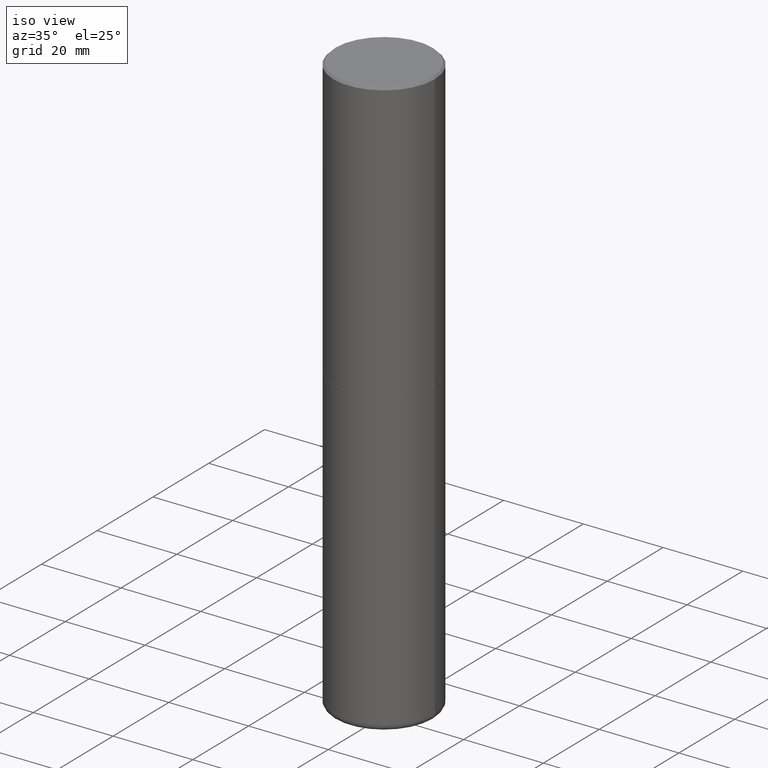
[diagram: clean part render]
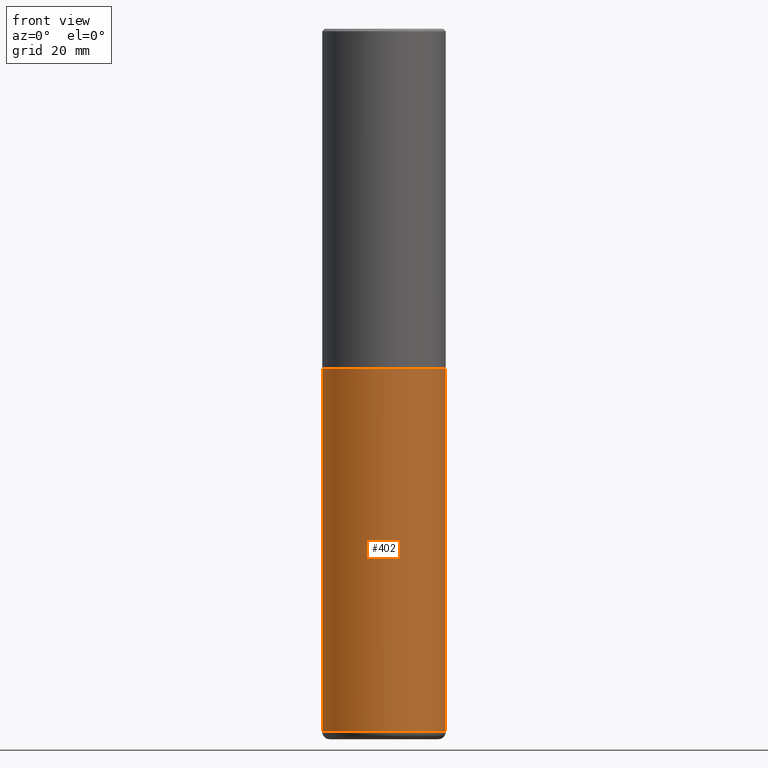
[diagram: tour spotlight — one face highlighted and labeled with its STEP entity id]
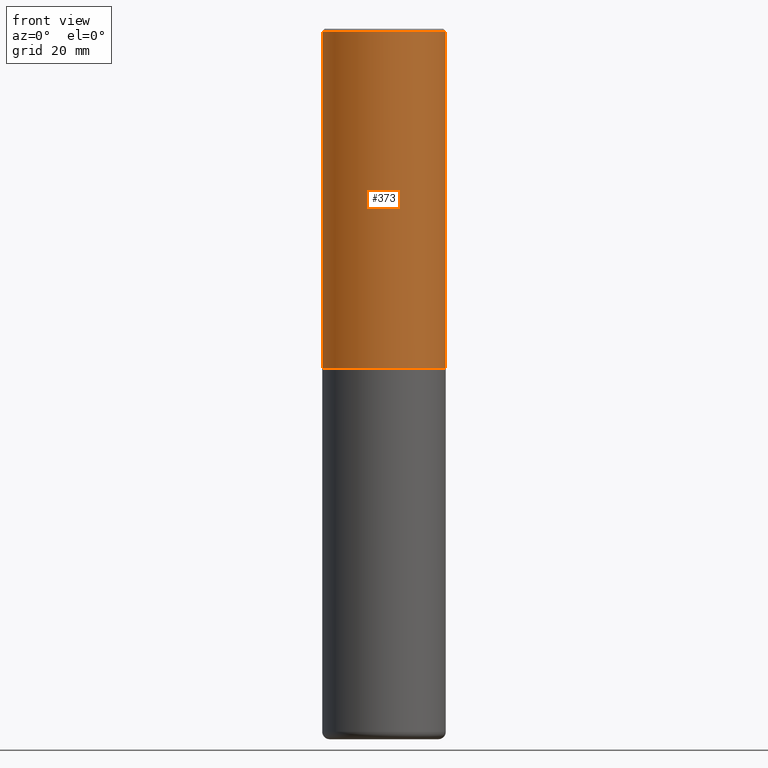
[diagram: tour spotlight — one face highlighted and labeled with its STEP entity id]
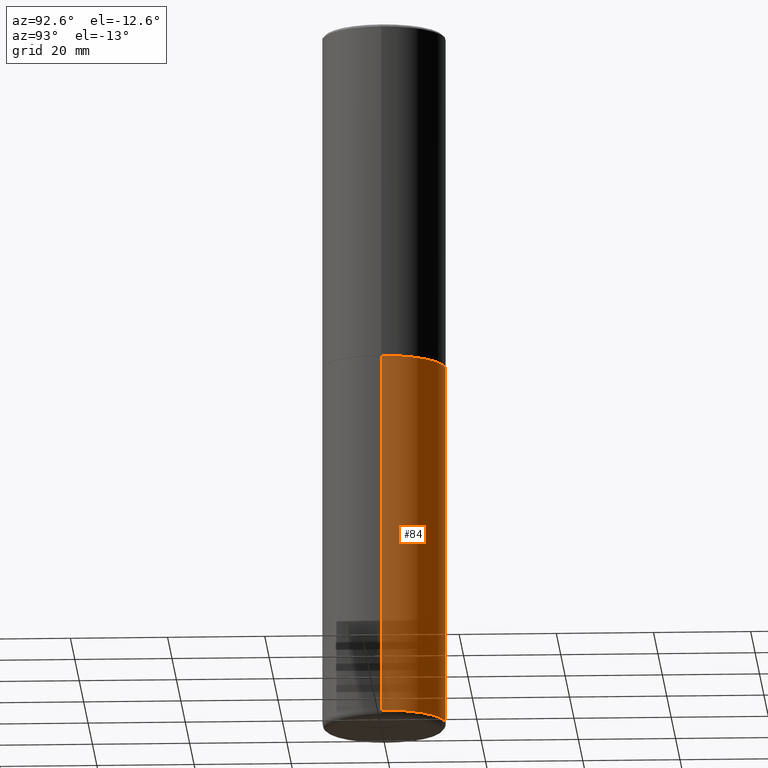
[diagram: tour spotlight — one face highlighted and labeled with its STEP entity id]
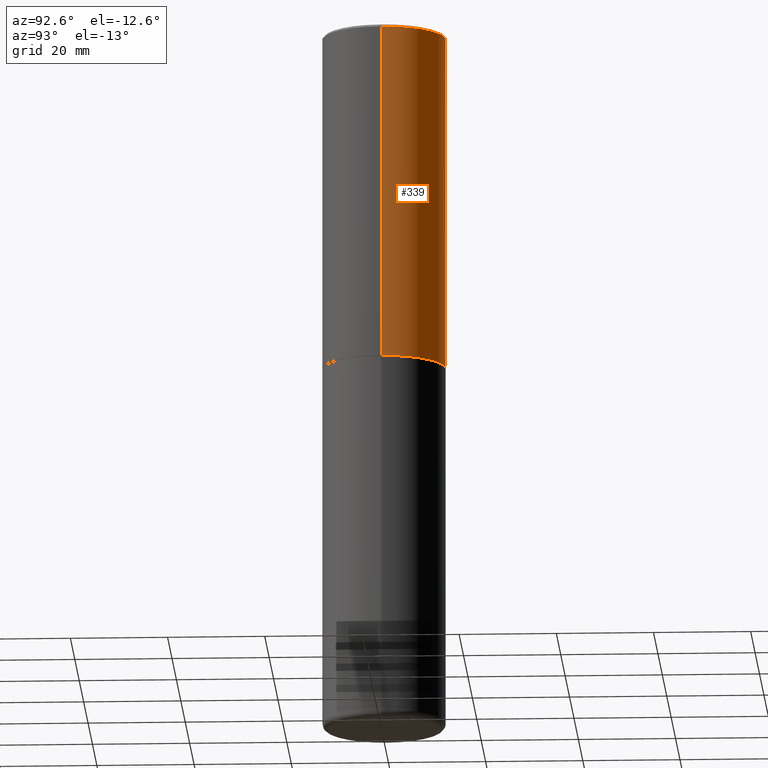
[diagram: tour spotlight — one face highlighted and labeled with its STEP entity id]
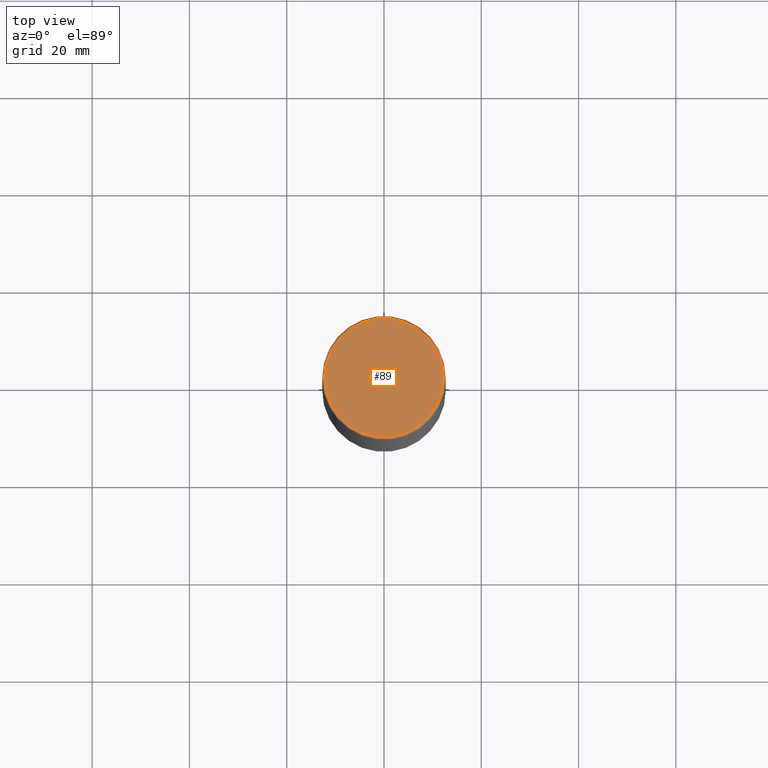
[diagram: tour spotlight — one face highlighted and labeled with its STEP entity id]
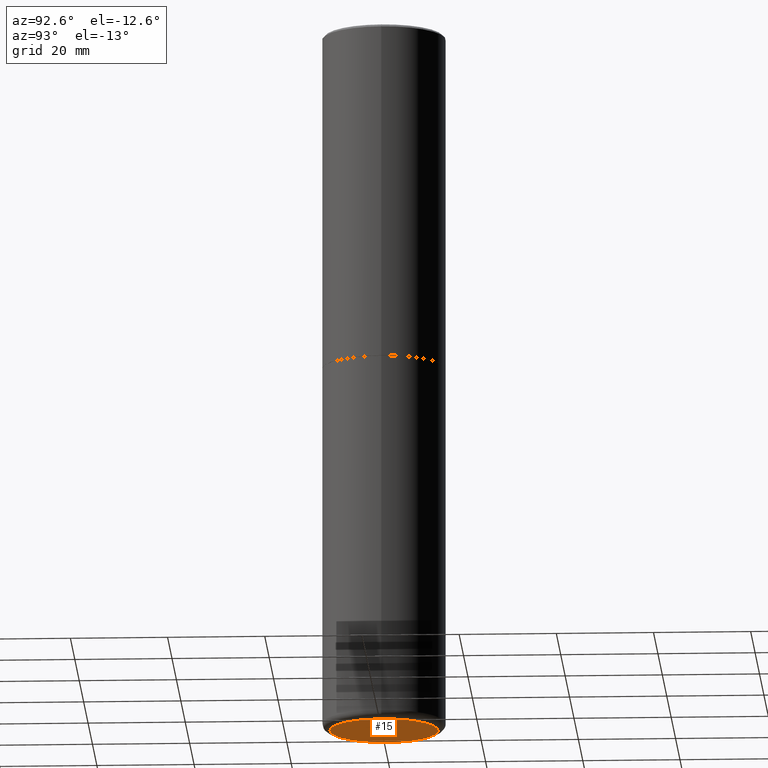
[diagram: tour spotlight — one face highlighted and labeled with its STEP entity id]
A machine part: a face-by-face anatomy tour. The part has 14 B-rep faces; the first image is the clean iso view, then the 6 largest visible faces are spotlighted one at a time (largest first), each with its STEP entity span.

Face 1 — front view, entity #402. In plain terms, the highlighted cylindrical surface (partial cylindrical patch) has radius 12.7 mm, axis along (-0, 0, 1).
Definition (entity closure, byte-faithful):
#13 = FACE_OUTER_BOUND ( 'NONE', #136, .T. ) ;
#22 = EDGE_CURVE ( 'NONE', #87, #220, #389, .T. ) ;
#29 = LINE ( 'NONE', #154, #212 ) ;
#38 = VECTOR ( 'NONE', #187, 39.37007874015748143 ) ;
#39 = ORIENTED_EDGE ( 'NONE', *, *, #271, .F. ) ;
#72 = AXIS2_PLACEMENT_3D ( 'NONE', #120, #149, #245 ) ;
#76 = CYLINDRICAL_SURFACE ( 'NONE', #319, 0.5000000000000000000 ) ;
#87 = VERTEX_POINT ( 'NONE', #217 ) ;
#95 = DIRECTION ( 'NONE',  ( 1.000000000000000000, -6.982962677686266711E-15, 0.000000000000000000 ) ) ;
#106 = CARTESIAN_POINT ( 'NONE',  ( 0.000000000000000000, 0.000000000000000000, 0.000000000000000000 ) ) ;
#108 = DIRECTION ( 'NONE',  ( 1.000000000000000000, -6.982962677686266711E-15, 4.876176775795935793E-29 ) ) ;
#109 = VERTEX_POINT ( 'NONE', #382 ) ;
#120 = CARTESIAN_POINT ( 'NONE',  ( 1.391471750719342616E-28, -1.986652881801749632E-14, -5.689999999999999503 ) ) ;
#129 = DIRECTION ( 'NONE',  ( -2.445468806185136597E-29, 3.491481338843145583E-15, 1.000000000000000000 ) ) ;
#131 = EDGE_CURVE ( 'NONE', #87, #198, #256, .T. ) ;
#136 = EDGE_LOOP ( 'NONE', ( #334, #234, #332, #39 ) ) ;
#149 = DIRECTION ( 'NONE',  ( -2.445468806185136597E-29, 3.491481338843145583E-15, 1.000000000000000000 ) ) ;
#154 = CARTESIAN_POINT ( 'NONE',  ( 0.5000000000000000000, -3.491481338843133355E-15, 2.438088387897967896E-29 ) ) ;
#187 = DIRECTION ( 'NONE',  ( -2.445468806185136877E-29, 3.491481338843145188E-15, 1.000000000000000000 ) ) ;
#198 = VERTEX_POINT ( 'NONE', #248 ) ;
#212 = VECTOR ( 'NONE', #411, 39.37007874015748143 ) ;
#217 = CARTESIAN_POINT ( 'NONE',  ( -0.5000000000000002220, -1.631381513921699223E-14, -5.689999999999999503 ) ) ;
#220 = VERTEX_POINT ( 'NONE', #313 ) ;
#225 = EDGE_CURVE ( 'NONE', #220, #109, #29, .T. ) ;
#234 = ORIENTED_EDGE ( 'NONE', *, *, #22, .T. ) ;
#245 = DIRECTION ( 'NONE',  ( 1.000000000000000000, -6.982962677686263555E-15, 0.000000000000000000 ) ) ;
#248 = CARTESIAN_POINT ( 'NONE',  ( -0.5000000000000000000, -1.118133757111757137E-14, -2.749999999999999556 ) ) ;
#252 = CARTESIAN_POINT ( 'NONE',  ( 6.725039217009123399E-29, -9.601573681818648281E-15, -2.749999999999999556 ) ) ;
#255 = CIRCLE ( 'NONE', #315, 0.5000000000000000000 ) ;
#256 = LINE ( 'NONE', #416, #38 ) ;
#271 = EDGE_CURVE ( 'NONE', #198, #109, #255, .T. ) ;
#313 = CARTESIAN_POINT ( 'NONE',  ( 0.5000000000000002220, -2.335801015686062967E-14, -5.689999999999999503 ) ) ;
#315 = AXIS2_PLACEMENT_3D ( 'NONE', #252, #379, #95 ) ;
#319 = AXIS2_PLACEMENT_3D ( 'NONE', #106, #129, #108 ) ;
#332 = ORIENTED_EDGE ( 'NONE', *, *, #225, .T. ) ;
#334 = ORIENTED_EDGE ( 'NONE', *, *, #131, .F. ) ;
#379 = DIRECTION ( 'NONE',  ( -2.445468806185136597E-29, 3.491481338843145583E-15, 1.000000000000000000 ) ) ;
#382 = CARTESIAN_POINT ( 'NONE',  ( 0.5000000000000000000, -1.309305502066178164E-14, -2.749999999999999556 ) ) ;
#389 = CIRCLE ( 'NONE', #72, 0.4999999999999999445 ) ;
#402 = ADVANCED_FACE ( 'NONE', ( #13 ), #76, .T. ) ;
#411 = DIRECTION ( 'NONE',  ( -2.445468806185136877E-29, 3.491481338843145188E-15, 1.000000000000000000 ) ) ;
#416 = CARTESIAN_POINT ( 'NONE',  ( -0.5000000000000000000, 3.552713678800500929E-15, -2.459467545127452891E-29 ) ) ;

Face 2 — front view, entity #373. In plain terms, the highlighted cylindrical surface (partial cylindrical patch) has radius 12.7 mm, axis along (-0, 0, 1).
Definition (entity closure, byte-faithful):
#7 = ORIENTED_EDGE ( 'NONE', *, *, #52, .T. ) ;
#24 = CARTESIAN_POINT ( 'NONE',  ( 0.5000000000000003331, -1.308956353932294179E-14, -2.748999999999999666 ) ) ;
#25 = ORIENTED_EDGE ( 'NONE', *, *, #375, .F. ) ;
#32 = CIRCLE ( 'NONE', #381, 0.5000000000000000000 ) ;
#35 = EDGE_CURVE ( 'NONE', #130, #263, #370, .T. ) ;
#41 = DIRECTION ( 'NONE',  ( -2.445468806185136597E-29, 3.491481338843145583E-15, 1.000000000000000000 ) ) ;
#52 = EDGE_CURVE ( 'NONE', #130, #86, #400, .T. ) ;
#65 = AXIS2_PLACEMENT_3D ( 'NONE', #247, #269, #215 ) ;
#71 = EDGE_LOOP ( 'NONE', ( #102, #7, #258, #25 ) ) ;
#83 = VERTEX_POINT ( 'NONE', #307 ) ;
#86 = VERTEX_POINT ( 'NONE', #24 ) ;
#102 = ORIENTED_EDGE ( 'NONE', *, *, #35, .F. ) ;
#130 = VERTEX_POINT ( 'NONE', #316 ) ;
#155 = CARTESIAN_POINT ( 'NONE',  ( -0.5000000000000000000, 3.421651712066270057E-15, -0.02000000000000010797 ) ) ;
#166 = DIRECTION ( 'NONE',  ( 1.000000000000000000, -6.982962677686266711E-15, 0.000000000000000000 ) ) ;
#172 = CARTESIAN_POINT ( 'NONE',  ( 0.000000000000000000, 0.000000000000000000, 0.000000000000000000 ) ) ;
#182 = DIRECTION ( 'NONE',  ( -2.445468806185136877E-29, 3.491481338843145188E-15, 1.000000000000000000 ) ) ;
#203 = DIRECTION ( 'NONE',  ( -2.445468806185136877E-29, 3.491481338843145188E-15, 1.000000000000000000 ) ) ;
#215 = DIRECTION ( 'NONE',  ( 1.000000000000000000, -6.982962677686265922E-15, 0.000000000000000000 ) ) ;
#228 = DIRECTION ( 'NONE',  ( -2.445468806185136597E-29, 3.491481338843145583E-15, 1.000000000000000000 ) ) ;
#231 = FACE_OUTER_BOUND ( 'NONE', #71, .T. ) ;
#242 = CARTESIAN_POINT ( 'NONE',  ( -0.5000000000000001110, 3.552713678800501718E-15, -2.459467545127453732E-29 ) ) ;
#247 = CARTESIAN_POINT ( 'NONE',  ( 6.722593748202938917E-29, -9.598082200479805274E-15, -2.748999999999999666 ) ) ;
#258 = ORIENTED_EDGE ( 'NONE', *, *, #278, .T. ) ;
#262 = CYLINDRICAL_SURFACE ( 'NONE', #353, 0.5000000000000001110 ) ;
#263 = VERTEX_POINT ( 'NONE', #155 ) ;
#266 = CARTESIAN_POINT ( 'NONE',  ( 0.5000000000000001110, -3.491481338843134539E-15, 2.438088387897968457E-29 ) ) ;
#269 = DIRECTION ( 'NONE',  ( -2.445468806185136597E-29, 3.491481338843145583E-15, 1.000000000000000000 ) ) ;
#278 = EDGE_CURVE ( 'NONE', #86, #83, #356, .T. ) ;
#297 = VECTOR ( 'NONE', #203, 39.37007874015748143 ) ;
#300 = CARTESIAN_POINT ( 'NONE',  ( 4.890937612370299433E-31, -6.982962677686328587E-17, -0.02000000000000010797 ) ) ;
#307 = CARTESIAN_POINT ( 'NONE',  ( 0.5000000000000000000, -3.500078625662629079E-15, -0.02000000000000010797 ) ) ;
#310 = VECTOR ( 'NONE', #182, 39.37007874015748143 ) ;
#316 = CARTESIAN_POINT ( 'NONE',  ( -0.5000000000000003331, -1.281242234827828821E-15, -2.748999999999999666 ) ) ;
#353 = AXIS2_PLACEMENT_3D ( 'NONE', #172, #41, #383 ) ;
#356 = LINE ( 'NONE', #266, #297 ) ;
#370 = LINE ( 'NONE', #242, #310 ) ;
#373 = ADVANCED_FACE ( 'NONE', ( #231 ), #262, .T. ) ;
#375 = EDGE_CURVE ( 'NONE', #263, #83, #32, .T. ) ;
#381 = AXIS2_PLACEMENT_3D ( 'NONE', #300, #228, #166 ) ;
#383 = DIRECTION ( 'NONE',  ( 1.000000000000000000, -6.982962677686267499E-15, 4.876176775795935793E-29 ) ) ;
#400 = CIRCLE ( 'NONE', #65, 0.5000000000000003331 ) ;

Face 3 — auxiliary view, entity #84. In plain terms, the highlighted cylindrical surface (partial cylindrical patch) has radius 12.7 mm, axis along (-0, 0, 1).
Definition (entity closure, byte-faithful):
#26 = CIRCLE ( 'NONE', #287, 0.5000000000000000000 ) ;
#29 = LINE ( 'NONE', #154, #212 ) ;
#38 = VECTOR ( 'NONE', #187, 39.37007874015748143 ) ;
#46 = DIRECTION ( 'NONE',  ( -2.445468806185136597E-29, 3.491481338843145583E-15, 1.000000000000000000 ) ) ;
#53 = CIRCLE ( 'NONE', #178, 0.4999999999999999445 ) ;
#58 = ORIENTED_EDGE ( 'NONE', *, *, #363, .F. ) ;
#67 = CARTESIAN_POINT ( 'NONE',  ( 6.725039217009123399E-29, -9.601573681818648281E-15, -2.749999999999999556 ) ) ;
#84 = ADVANCED_FACE ( 'NONE', ( #401 ), #306, .T. ) ;
#87 = VERTEX_POINT ( 'NONE', #217 ) ;
#88 = DIRECTION ( 'NONE',  ( -2.445468806185136597E-29, 3.491481338843145583E-15, 1.000000000000000000 ) ) ;
#109 = VERTEX_POINT ( 'NONE', #382 ) ;
#121 = DIRECTION ( 'NONE',  ( -2.445468806185136597E-29, 3.491481338843145583E-15, 1.000000000000000000 ) ) ;
#131 = EDGE_CURVE ( 'NONE', #87, #198, #256, .T. ) ;
#154 = CARTESIAN_POINT ( 'NONE',  ( 0.5000000000000000000, -3.491481338843133355E-15, 2.438088387897967896E-29 ) ) ;
#178 = AXIS2_PLACEMENT_3D ( 'NONE', #410, #121, #253 ) ;
#187 = DIRECTION ( 'NONE',  ( -2.445468806185136877E-29, 3.491481338843145188E-15, 1.000000000000000000 ) ) ;
#195 = EDGE_CURVE ( 'NONE', #220, #87, #53, .T. ) ;
#197 = DIRECTION ( 'NONE',  ( 1.000000000000000000, -6.982962677686266711E-15, 0.000000000000000000 ) ) ;
#198 = VERTEX_POINT ( 'NONE', #248 ) ;
#212 = VECTOR ( 'NONE', #411, 39.37007874015748143 ) ;
#217 = CARTESIAN_POINT ( 'NONE',  ( -0.5000000000000002220, -1.631381513921699223E-14, -5.689999999999999503 ) ) ;
#220 = VERTEX_POINT ( 'NONE', #313 ) ;
#225 = EDGE_CURVE ( 'NONE', #220, #109, #29, .T. ) ;
#248 = CARTESIAN_POINT ( 'NONE',  ( -0.5000000000000000000, -1.118133757111757137E-14, -2.749999999999999556 ) ) ;
#253 = DIRECTION ( 'NONE',  ( 1.000000000000000000, -6.982962677686263555E-15, 0.000000000000000000 ) ) ;
#256 = LINE ( 'NONE', #416, #38 ) ;
#267 = ORIENTED_EDGE ( 'NONE', *, *, #131, .T. ) ;
#273 = CARTESIAN_POINT ( 'NONE',  ( 0.000000000000000000, 0.000000000000000000, 0.000000000000000000 ) ) ;
#287 = AXIS2_PLACEMENT_3D ( 'NONE', #67, #46, #197 ) ;
#306 = CYLINDRICAL_SURFACE ( 'NONE', #335, 0.5000000000000000000 ) ;
#309 = DIRECTION ( 'NONE',  ( 1.000000000000000000, -6.982962677686266711E-15, 4.876176775795935793E-29 ) ) ;
#313 = CARTESIAN_POINT ( 'NONE',  ( 0.5000000000000002220, -2.335801015686062967E-14, -5.689999999999999503 ) ) ;
#335 = AXIS2_PLACEMENT_3D ( 'NONE', #273, #88, #309 ) ;
#357 = ORIENTED_EDGE ( 'NONE', *, *, #225, .F. ) ;
#363 = EDGE_CURVE ( 'NONE', #109, #198, #26, .T. ) ;
#365 = EDGE_LOOP ( 'NONE', ( #392, #267, #58, #357 ) ) ;
#382 = CARTESIAN_POINT ( 'NONE',  ( 0.5000000000000000000, -1.309305502066178164E-14, -2.749999999999999556 ) ) ;
#392 = ORIENTED_EDGE ( 'NONE', *, *, #195, .T. ) ;
#401 = FACE_OUTER_BOUND ( 'NONE', #365, .T. ) ;
#410 = CARTESIAN_POINT ( 'NONE',  ( 1.391471750719342616E-28, -1.986652881801749632E-14, -5.689999999999999503 ) ) ;
#411 = DIRECTION ( 'NONE',  ( -2.445468806185136877E-29, 3.491481338843145188E-15, 1.000000000000000000 ) ) ;
#416 = CARTESIAN_POINT ( 'NONE',  ( -0.5000000000000000000, 3.552713678800500929E-15, -2.459467545127452891E-29 ) ) ;

Face 4 — auxiliary view, entity #339. In plain terms, the highlighted cylindrical surface (partial cylindrical patch) has radius 12.7 mm, axis along (-0, 0, 1).
Definition (entity closure, byte-faithful):
#24 = CARTESIAN_POINT ( 'NONE',  ( 0.5000000000000003331, -1.308956353932294179E-14, -2.748999999999999666 ) ) ;
#35 = EDGE_CURVE ( 'NONE', #130, #263, #370, .T. ) ;
#48 = ORIENTED_EDGE ( 'NONE', *, *, #404, .T. ) ;
#73 = CYLINDRICAL_SURFACE ( 'NONE', #275, 0.5000000000000001110 ) ;
#82 = EDGE_CURVE ( 'NONE', #83, #263, #218, .T. ) ;
#83 = VERTEX_POINT ( 'NONE', #307 ) ;
#85 = DIRECTION ( 'NONE',  ( -2.445468806185136597E-29, 3.491481338843145583E-15, 1.000000000000000000 ) ) ;
#86 = VERTEX_POINT ( 'NONE', #24 ) ;
#111 = ORIENTED_EDGE ( 'NONE', *, *, #35, .T. ) ;
#130 = VERTEX_POINT ( 'NONE', #316 ) ;
#134 = DIRECTION ( 'NONE',  ( -2.445468806185136597E-29, 3.491481338843145583E-15, 1.000000000000000000 ) ) ;
#140 = DIRECTION ( 'NONE',  ( 1.000000000000000000, -6.982962677686265922E-15, 0.000000000000000000 ) ) ;
#155 = CARTESIAN_POINT ( 'NONE',  ( -0.5000000000000000000, 3.421651712066270057E-15, -0.02000000000000010797 ) ) ;
#168 = DIRECTION ( 'NONE',  ( -2.445468806185136597E-29, 3.491481338843145583E-15, 1.000000000000000000 ) ) ;
#169 = EDGE_LOOP ( 'NONE', ( #48, #111, #211, #361 ) ) ;
#180 = CARTESIAN_POINT ( 'NONE',  ( 4.890937612370299433E-31, -6.982962677686328587E-17, -0.02000000000000010797 ) ) ;
#182 = DIRECTION ( 'NONE',  ( -2.445468806185136877E-29, 3.491481338843145188E-15, 1.000000000000000000 ) ) ;
#203 = DIRECTION ( 'NONE',  ( -2.445468806185136877E-29, 3.491481338843145188E-15, 1.000000000000000000 ) ) ;
#211 = ORIENTED_EDGE ( 'NONE', *, *, #82, .F. ) ;
#218 = CIRCLE ( 'NONE', #223, 0.5000000000000000000 ) ;
#223 = AXIS2_PLACEMENT_3D ( 'NONE', #180, #85, #272 ) ;
#233 = CARTESIAN_POINT ( 'NONE',  ( 0.000000000000000000, 0.000000000000000000, 0.000000000000000000 ) ) ;
#242 = CARTESIAN_POINT ( 'NONE',  ( -0.5000000000000001110, 3.552713678800501718E-15, -2.459467545127453732E-29 ) ) ;
#263 = VERTEX_POINT ( 'NONE', #155 ) ;
#266 = CARTESIAN_POINT ( 'NONE',  ( 0.5000000000000001110, -3.491481338843134539E-15, 2.438088387897968457E-29 ) ) ;
#272 = DIRECTION ( 'NONE',  ( 1.000000000000000000, -6.982962677686266711E-15, 0.000000000000000000 ) ) ;
#275 = AXIS2_PLACEMENT_3D ( 'NONE', #233, #134, #359 ) ;
#278 = EDGE_CURVE ( 'NONE', #86, #83, #356, .T. ) ;
#289 = CIRCLE ( 'NONE', #413, 0.5000000000000003331 ) ;
#294 = CARTESIAN_POINT ( 'NONE',  ( 6.722593748202938917E-29, -9.598082200479805274E-15, -2.748999999999999666 ) ) ;
#297 = VECTOR ( 'NONE', #203, 39.37007874015748143 ) ;
#307 = CARTESIAN_POINT ( 'NONE',  ( 0.5000000000000000000, -3.500078625662629079E-15, -0.02000000000000010797 ) ) ;
#310 = VECTOR ( 'NONE', #182, 39.37007874015748143 ) ;
#316 = CARTESIAN_POINT ( 'NONE',  ( -0.5000000000000003331, -1.281242234827828821E-15, -2.748999999999999666 ) ) ;
#325 = FACE_OUTER_BOUND ( 'NONE', #169, .T. ) ;
#339 = ADVANCED_FACE ( 'NONE', ( #325 ), #73, .T. ) ;
#356 = LINE ( 'NONE', #266, #297 ) ;
#359 = DIRECTION ( 'NONE',  ( 1.000000000000000000, -6.982962677686267499E-15, 4.876176775795935793E-29 ) ) ;
#361 = ORIENTED_EDGE ( 'NONE', *, *, #278, .F. ) ;
#370 = LINE ( 'NONE', #242, #310 ) ;
#404 = EDGE_CURVE ( 'NONE', #86, #130, #289, .T. ) ;
#413 = AXIS2_PLACEMENT_3D ( 'NONE', #294, #168, #140 ) ;

Face 5 — top view, entity #89. In plain terms, the highlighted planar face has unit normal (0, -0, -1).
Definition (entity closure, byte-faithful):
#3 = EDGE_CURVE ( 'NONE', #213, #237, #161, .T. ) ;
#23 = DIRECTION ( 'NONE',  ( 1.000000000000000000, -6.982962677686266711E-15, 4.874852205035275907E-29 ) ) ;
#34 = CARTESIAN_POINT ( 'NONE',  ( 0.4800000000000000933, -3.396558832296482493E-15, -1.067128122524866809E-16 ) ) ;
#70 = DIRECTION ( 'NONE',  ( -2.445468806185136597E-29, 3.491481338843145583E-15, 1.000000000000000000 ) ) ;
#89 = ADVANCED_FACE ( 'NONE', ( #338 ), #146, .F. ) ;
#114 = CARTESIAN_POINT ( 'NONE',  ( 3.351822085289408337E-15, 0.4800000000000000933, -1.729267448770965221E-15 ) ) ;
#123 = CIRCLE ( 'NONE', #137, 0.4800000000000000933 ) ;
#137 = AXIS2_PLACEMENT_3D ( 'NONE', #288, #70, #397 ) ;
#146 = PLANE ( 'NONE',  #364 ) ;
#152 = DIRECTION ( 'NONE',  ( -2.445468806185136597E-29, 3.491481338843145583E-15, 1.000000000000000000 ) ) ;
#161 = CIRCLE ( 'NONE', #377, 0.4800000000000000933 ) ;
#209 = DIRECTION ( 'NONE',  ( 2.438088387897960049E-29, -3.491481338843145188E-15, -1.000000000000000000 ) ) ;
#213 = VERTEX_POINT ( 'NONE', #219 ) ;
#219 = CARTESIAN_POINT ( 'NONE',  ( -0.4800000000000000933, 3.386736898677839197E-15, -1.067128122525338523E-16 ) ) ;
#237 = VERTEX_POINT ( 'NONE', #34 ) ;
#288 = CARTESIAN_POINT ( 'NONE',  ( 2.609628535838049452E-45, -3.725857925951117973E-31, -1.067128122525102851E-16 ) ) ;
#302 = CARTESIAN_POINT ( 'NONE',  ( 2.609628535838049452E-45, -3.725857925951117973E-31, -1.067128122525102851E-16 ) ) ;
#303 = EDGE_CURVE ( 'NONE', #237, #213, #123, .T. ) ;
#329 = ORIENTED_EDGE ( 'NONE', *, *, #3, .T. ) ;
#333 = DIRECTION ( 'NONE',  ( -1.000000000000000000, 6.982962677686265922E-15, -4.876176775795935793E-29 ) ) ;
#337 = ORIENTED_EDGE ( 'NONE', *, *, #303, .T. ) ;
#338 = FACE_OUTER_BOUND ( 'NONE', #394, .T. ) ;
#364 = AXIS2_PLACEMENT_3D ( 'NONE', #114, #209, #333 ) ;
#377 = AXIS2_PLACEMENT_3D ( 'NONE', #302, #152, #23 ) ;
#394 = EDGE_LOOP ( 'NONE', ( #329, #337 ) ) ;
#397 = DIRECTION ( 'NONE',  ( 1.000000000000000000, -6.982962677686266711E-15, 4.874852205035275907E-29 ) ) ;

Face 6 — auxiliary view, entity #15. In plain terms, the highlighted planar face has unit normal (0, -0, -1).
Definition (entity closure, byte-faithful):
#15 = ADVANCED_FACE ( 'NONE', ( #148 ), #366, .T. ) ;
#36 = CARTESIAN_POINT ( 'NONE',  ( 1.406144563556453767E-28, -2.007601769834809252E-14, -5.750000000000000888 ) ) ;
#42 = EDGE_LOOP ( 'NONE', ( #227, #368 ) ) ;
#43 = DIRECTION ( 'NONE',  ( 1.000000000000000000, -6.982962677686262766E-15, 0.000000000000000000 ) ) ;
#97 = CIRCLE ( 'NONE', #205, 0.4400000000000000022 ) ;
#99 = VERTEX_POINT ( 'NONE', #224 ) ;
#118 = DIRECTION ( 'NONE',  ( 2.438088387897960049E-29, -3.491481338843145188E-15, -1.000000000000000000 ) ) ;
#126 = DIRECTION ( 'NONE',  ( -2.445468806185136597E-29, 3.491481338843145583E-15, 1.000000000000000000 ) ) ;
#148 = FACE_OUTER_BOUND ( 'NONE', #42, .T. ) ;
#151 = CARTESIAN_POINT ( 'NONE',  ( 4.089694968291764333E-29, -3.435613221068401065E-14, -5.750000000000000888 ) ) ;
#164 = EDGE_CURVE ( 'NONE', #350, #99, #270, .T. ) ;
#183 = AXIS2_PLACEMENT_3D ( 'NONE', #151, #118, #408 ) ;
#193 = CARTESIAN_POINT ( 'NONE',  ( 0.4400000000000000022, -2.314852127653004609E-14, -5.750000000000000888 ) ) ;
#194 = AXIS2_PLACEMENT_3D ( 'NONE', #415, #126, #279 ) ;
#205 = AXIS2_PLACEMENT_3D ( 'NONE', #36, #393, #43 ) ;
#224 = CARTESIAN_POINT ( 'NONE',  ( -0.4400000000000000022, -1.663172240011032058E-14, -5.750000000000000888 ) ) ;
#227 = ORIENTED_EDGE ( 'NONE', *, *, #164, .F. ) ;
#270 = CIRCLE ( 'NONE', #194, 0.4400000000000000022 ) ;
#279 = DIRECTION ( 'NONE',  ( 1.000000000000000000, -6.982962677686262766E-15, 0.000000000000000000 ) ) ;
#341 = EDGE_CURVE ( 'NONE', #99, #350, #97, .T. ) ;
#350 = VERTEX_POINT ( 'NONE', #193 ) ;
#366 = PLANE ( 'NONE',  #183 ) ;
#368 = ORIENTED_EDGE ( 'NONE', *, *, #341, .F. ) ;
#393 = DIRECTION ( 'NONE',  ( -2.445468806185136597E-29, 3.491481338843145583E-15, 1.000000000000000000 ) ) ;
#408 = DIRECTION ( 'NONE',  ( -1.000000000000000000, 6.982962677686265922E-15, -4.876176775795935793E-29 ) ) ;
#415 = CARTESIAN_POINT ( 'NONE',  ( 1.406144563556453767E-28, -2.007601769834809252E-14, -5.750000000000000888 ) ) ;